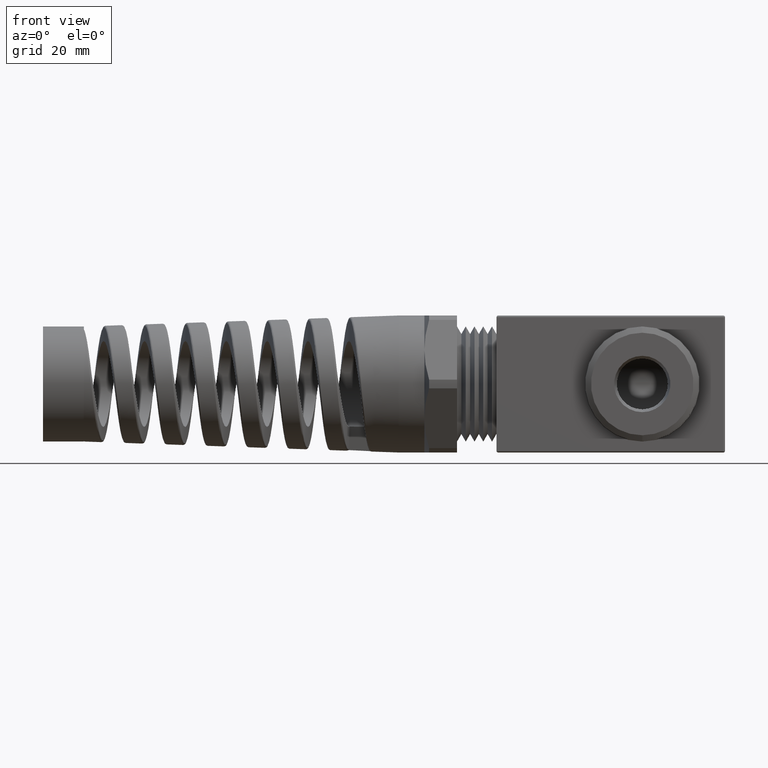
[diagram: clean part render]
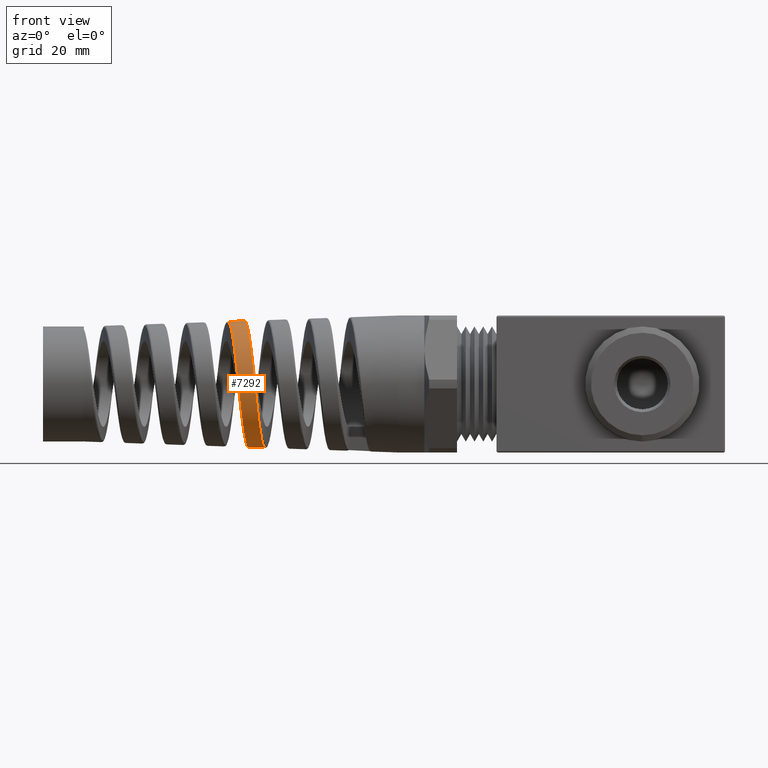
[diagram: same view with one face highlighted and labeled with its STEP entity id]
A machine part, front view. The second image highlights one B-rep face of the part: STEP entity #7292.
In plain terms, the highlighted conical surface has half-angle 2 deg.
Its self-contained STEP definition (entity closure, byte-faithful):
#1278 = CARTESIAN_POINT ( 'NONE',  ( -1.841561912663937100, 6.841017039087616400E-014, 0.4291579980415429800 ) ) ;
#1283 = CARTESIAN_POINT ( 'NONE',  ( -1.588092709410913600, 5.378720768999652000E-013, -0.4380093376615970500 ) ) ;
#1292 = DIRECTION ( 'NONE',  ( 0.9993908270190959800, 0.0000000000000000000, -0.03489949670249403700 ) ) ;
#1294 = VECTOR ( 'NONE', #1292, 39.37007874015748100 ) ;
#1295 = CARTESIAN_POINT ( 'NONE',  ( -0.6720000000000001500, 0.0000000000000000000, -0.4699999999999998600 ) ) ;
#1296 = LINE ( 'NONE', #1295, #1294 ) ;
#1523 = CARTESIAN_POINT ( 'NONE',  ( -1.701181390279759200, 1.537446131535684400E-014, -0.4340601939048510700 ) ) ;
#1677 = DIRECTION ( 'NONE',  ( 0.9993908270190959800, 4.273955692856292900E-018, 0.03489949670249403700 ) ) ;
#1678 = VECTOR ( 'NONE', #1677, 39.37007874015748100 ) ;
#1679 = CARTESIAN_POINT ( 'NONE',  ( -0.6720000000000001500, 5.755839955992558400E-017, 0.4699999999999998600 ) ) ;
#1680 = LINE ( 'NONE', #1679, #1678 ) ;
#5876 = CARTESIAN_POINT ( 'NONE',  ( -1.728496292560490500, 6.489728726191558100E-016, 0.4331063364986161800 ) ) ;
#7096 = VERTEX_POINT ( 'NONE', #1283 ) ;
#7099 = VERTEX_POINT ( 'NONE', #1278 ) ;
#7107 = EDGE_CURVE ( 'NONE', #7166, #7096, #1296, .T. ) ;
#7166 = VERTEX_POINT ( 'NONE', #1523 ) ;
#7180 = EDGE_CURVE ( 'NONE', #7099, #7203, #1680, .T. ) ;
#7203 = VERTEX_POINT ( 'NONE', #5876 ) ;
#7286 = EDGE_CURVE ( 'NONE', #7099, #7166, #8256, .T. ) ;
#7287 = ORIENTED_EDGE ( 'NONE', *, *, #7107, .T. ) ;
#7288 = ORIENTED_EDGE ( 'NONE', *, *, #7291, .T. ) ;
#7291 = EDGE_CURVE ( 'NONE', #7096, #7203, #8372, .T. ) ;
#7292 = ADVANCED_FACE ( 'NONE', ( #8373 ), #8402, .T. ) ;
#7294 = EDGE_LOOP ( 'NONE', ( #7305, #7306, #7287, #7288 ) ) ;
#7305 = ORIENTED_EDGE ( 'NONE', *, *, #7180, .F. ) ;
#7306 = ORIENTED_EDGE ( 'NONE', *, *, #7286, .T. ) ;
#8251 = CARTESIAN_POINT ( 'NONE',  ( -1.834173036148997400, -0.07075670660705833700, 0.4237799771779977000 ) ) ;
#8252 = CARTESIAN_POINT ( 'NONE',  ( -1.835639224060607000, -0.05679385894752526900, 0.4258286824240877200 ) ) ;
#8253 = CARTESIAN_POINT ( 'NONE',  ( -1.838592442112284800, -0.02853695656774338200, 0.4285471996270462900 ) ) ;
#8254 = CARTESIAN_POINT ( 'NONE',  ( -1.840080810731172100, -0.01422985886500099400, 0.4292097192607331500 ) ) ;
#8255 = CARTESIAN_POINT ( 'NONE',  ( -1.841561912663937100, 6.841017039087616400E-014, 0.4291579980415429800 ) ) ;
#8256 = B_SPLINE_CURVE_WITH_KNOTS ( 'NONE', 3,
 ( #8255, #8254, #8253, #8252, #8251, #8334, #8333, #8332, #8331, #8330, #8329, #8328, #8327, #8326, #8325, #8324, #8323, #8322, #8321, #8320, #8319, #8318, #8317, #8316, #8315, #8314, #8313, #8312, #8311, #8310, #8309, #8308, #8307, #8306, #8305, #8304, #8303, #8302, #8301, #8300, #8299, #8298, #8297, #8296, #8295, #8294, #8293, #8292, #8291 ),
 .UNSPECIFIED., .F., .F.,
 ( 4, 2, 2, 2, 2, 1, 2, 2, 2, 2, 2, 2, 2, 2, 2, 2, 2, 2, 2, 2, 2, 2, 2, 2, 4 ),
 ( 0.2349370397999832000, 0.2360280126698850500, 0.2371189855397869100, 0.2393009312795906000, 0.2403919041494924400, 0.2414828770193943000, 0.2425738498892961400, 0.2436648227591979900, 0.2458467684990016700, 0.2480287142388053500, 0.2502106599786090300, 0.2513016328485109300, 0.2523926057184127700, 0.2545745514582164500, 0.2567564971980201300, 0.2578474700679219700, 0.2589384429378238100, 0.2611203886776274900, 0.2622113615475293300, 0.2633023344174311700, 0.2654842801572349100, 0.2665752530271367500, 0.2676662258970385900, 0.2687571987669404300, 0.2698481716368422700 ),
 .UNSPECIFIED. ) ;
#8291 = CARTESIAN_POINT ( 'NONE',  ( -1.701181390279759200, 1.537446131535684400E-014, -0.4340601939048510700 ) ) ;
#8292 = CARTESIAN_POINT ( 'NONE',  ( -1.702644112074749300, -0.01420979355368818200, -0.4340091145342182500 ) ) ;
#8293 = CARTESIAN_POINT ( 'NONE',  ( -1.704110953029998900, -0.02844996807434156700, -0.4332542253267711000 ) ) ;
#8294 = CARTESIAN_POINT ( 'NONE',  ( -1.707019070579340700, -0.05653010050608105200, -0.4303891755557874800 ) ) ;
#8295 = CARTESIAN_POINT ( 'NONE',  ( -1.708467330347169400, -0.07043814989449204100, -0.4282796158826096000 ) ) ;
#8296 = CARTESIAN_POINT ( 'NONE',  ( -1.711364733536663100, -0.09799214312385597100, -0.4227229919480712300 ) ) ;
#8297 = CARTESIAN_POINT ( 'NONE',  ( -1.712813379440780900, -0.1116381423913349900, -0.4192759426667188000 ) ) ;
#8298 = CARTESIAN_POINT ( 'NONE',  ( -1.715725316373403400, -0.1386624117519073800, -0.4110230441560467900 ) ) ;
#8299 = CARTESIAN_POINT ( 'NONE',  ( -1.717196818389192400, -0.1521131111328630500, -0.4061845896642241000 ) ) ;
#8300 = CARTESIAN_POINT ( 'NONE',  ( -1.721583276457384000, -0.1914027668722319000, -0.3898208893996108500 ) ) ;
#8301 = CARTESIAN_POINT ( 'NONE',  ( -1.724468527878075100, -0.2161856841232257000, -0.3765094446776247600 ) ) ;
#8302 = CARTESIAN_POINT ( 'NONE',  ( -1.728823773638256300, -0.2512842977106087300, -0.3530234542408863300 ) ) ;
#8303 = CARTESIAN_POINT ( 'NONE',  ( -1.730280035489447600, -0.2626354659091220100, -0.3446042196776064000 ) ) ;
#8304 = CARTESIAN_POINT ( 'NONE',  ( -1.733216268685799700, -0.2846176229745928700, -0.3265478075005546800 ) ) ;
#8305 = CARTESIAN_POINT ( 'NONE',  ( -1.734684305625505500, -0.2951549462667155100, -0.3169802254648714200 ) ) ;
#8306 = CARTESIAN_POINT ( 'NONE',  ( -1.739055353414006300, -0.3250594253606847200, -0.2870434927512008900 ) ) ;
#8307 = CARTESIAN_POINT ( 'NONE',  ( -1.741945503069912200, -0.3428999138496040000, -0.2653182116610758300 ) ) ;
#8308 = CARTESIAN_POINT ( 'NONE',  ( -1.746327082708033100, -0.3664864337672291100, -0.2300646039331091000 ) ) ;
#8309 = CARTESIAN_POINT ( 'NONE',  ( -1.747803319054173500, -0.3738490343762106400, -0.2177964925222865800 ) ) ;
#8310 = CARTESIAN_POINT ( 'NONE',  ( -1.750731568438960200, -0.3872179999844266300, -0.1928009476675596500 ) ) ;
#8311 = CARTESIAN_POINT ( 'NONE',  ( -1.752186468215523900, -0.3932469813530633500, -0.1800547669940109900 ) ) ;
#8312 = CARTESIAN_POINT ( 'NONE',  ( -1.756545496468120600, -0.4094118379373482600, -0.1410902057726827800 ) ) ;
#8313 = CARTESIAN_POINT ( 'NONE',  ( -1.759443732269351500, -0.4176441201044491800, -0.1141527611773698900 ) ) ;
#8314 = CARTESIAN_POINT ( 'NONE',  ( -1.765339803648906700, -0.4288143838713694400, -0.05829087737140163000 ) ) ;
#8315 = CARTESIAN_POINT ( 'NONE',  ( -1.768251265675089100, -0.4315784043889401800, -0.03018229527921595700 ) ) ;
#8316 = CARTESIAN_POINT ( 'NONE',  ( -1.772617237797215600, -0.4316279967913190800, 0.01198915971067074700 ) ) ;
#8317 = CARTESIAN_POINT ( 'NONE',  ( -1.774074185992559700, -0.4309594733917491700, 0.02606123887140257900 ) ) ;
#8318 = CARTESIAN_POINT ( 'NONE',  ( -1.777004963103246100, -0.4282237295716515000, 0.05423446360485376100 ) ) ;
#8319 = CARTESIAN_POINT ( 'NONE',  ( -1.778485309218612400, -0.4261389120112483700, 0.06839652613781092800 ) ) ;
#8320 = CARTESIAN_POINT ( 'NONE',  ( -1.782883244161572300, -0.4178857085589426400, 0.1100580651535573600 ) ) ;
#8321 = CARTESIAN_POINT ( 'NONE',  ( -1.785781620847448400, -0.4097391555462271400, 0.1369691386260972800 ) ) ;
#8322 = CARTESIAN_POINT ( 'NONE',  ( -1.791626738169264500, -0.3882283739201419200, 0.1890753835268072200 ) ) ;
#8323 = CARTESIAN_POINT ( 'NONE',  ( -1.794596536370698400, -0.3746977995052160300, 0.2144343825307675800 ) ) ;
#8324 = CARTESIAN_POINT ( 'NONE',  ( -1.800443758841251000, -0.3434119407039841800, 0.2612908286769734500 ) ) ;
#8325 = CARTESIAN_POINT ( 'NONE',  ( -1.803347702722432100, -0.3255930954241457200, 0.2830480151973149800 ) ) ;
#8326 = CARTESIAN_POINT ( 'NONE',  ( -1.807759860732106800, -0.2955441974868410200, 0.3131223055031209200 ) ) ;
#8327 = CARTESIAN_POINT ( 'NONE',  ( -1.809243155391052800, -0.2849409437219953500, 0.3227307476018538800 ) ) ;
#8328 = CARTESIAN_POINT ( 'NONE',  ( -1.812178817544600500, -0.2630736205449628100, 0.3406619077310827900 ) ) ;
#8329 = CARTESIAN_POINT ( 'NONE',  ( -1.815099381809438300, -0.2404425827538976800, 0.3574208175820389200 ) ) ;
#8330 = CARTESIAN_POINT ( 'NONE',  ( -1.818019088529181100, -0.2163131579766342000, 0.3718742939658042900 ) ) ;
#8331 = CARTESIAN_POINT ( 'NONE',  ( -1.820952340603758900, -0.1914274320555456900, 0.3851614396907964100 ) ) ;
#8332 = CARTESIAN_POINT ( 'NONE',  ( -1.822431673270428900, -0.1785534789218999900, 0.3912432745792096500 ) ) ;
#8333 = CARTESIAN_POINT ( 'NONE',  ( -1.826869993670167600, -0.1391188729067899300, 0.4075193605569084100 ) ) ;
#8334 = CARTESIAN_POINT ( 'NONE',  ( -1.829783408204705300, -0.1121596378978960400, 0.4156217606776908000 ) ) ;
#8335 = CARTESIAN_POINT ( 'NONE',  ( -1.703502866350349300, -0.2303624107153612900, 0.3680683294387387400 ) ) ;
#8336 = CARTESIAN_POINT ( 'NONE',  ( -1.699100119797324100, -0.2659384595453337900, 0.3443270267778453200 ) ) ;
#8337 = CARTESIAN_POINT ( 'NONE',  ( -1.696195509476245300, -0.2878838382687924400, 0.3263359218202439000 ) ) ;
#8338 = CARTESIAN_POINT ( 'NONE',  ( -1.691796985386851500, -0.3181398987928470400, 0.2961132521828376800 ) ) ;
#8339 = CARTESIAN_POINT ( 'NONE',  ( -1.690315829708939100, -0.3278267162539137400, 0.2854344364263184900 ) ) ;
#8340 = CARTESIAN_POINT ( 'NONE',  ( -1.687367242087446200, -0.3460050863788525800, 0.2632738688811646100 ) ) ;
#8341 = CARTESIAN_POINT ( 'NONE',  ( -1.685902988699076800, -0.3544838044892056900, 0.2518225895377605400 ) ) ;
#8342 = CARTESIAN_POINT ( 'NONE',  ( -1.681519356481632900, -0.3781372831006479300, 0.2163878157318064300 ) ) ;
#8343 = CARTESIAN_POINT ( 'NONE',  ( -1.678610912184730600, -0.3915464063140199300, 0.1913334880427575700 ) ) ;
#8344 = CARTESIAN_POINT ( 'NONE',  ( -1.674187151363305300, -0.4080044045249186500, 0.1515449922940504700 ) ) ;
#8345 = CARTESIAN_POINT ( 'NONE',  ( -1.672711971565763700, -0.4128334031426187900, 0.1379989758745423200 ) ) ;
#8346 = CARTESIAN_POINT ( 'NONE',  ( -1.669787576939518700, -0.4210727902529471900, 0.1107326021136305600 ) ) ;
#8347 = CARTESIAN_POINT ( 'NONE',  ( -1.666876532697572300, -0.4279415194525773000, 0.08317866981792813900 ) ) ;
#8348 = CARTESIAN_POINT ( 'NONE',  ( -1.663963255881072200, -0.4320999482530167900, 0.05505914403339316100 ) ) ;
#8349 = CARTESIAN_POINT ( 'NONE',  ( -1.661034253585972300, -0.4348799101349208300, 0.02665349294479566300 ) ) ;
#8350 = CARTESIAN_POINT ( 'NONE',  ( -1.659553792975186700, -0.4355772931154848200, 0.01222852141637867200 ) ) ;
#8351 = CARTESIAN_POINT ( 'NONE',  ( -1.655146842097790800, -0.4355259634450351900, -0.03070332094575632300 ) ) ;
#8352 = CARTESIAN_POINT ( 'NONE',  ( -1.652245188139831200, -0.4326979440143100000, -0.05895456623279007200 ) ) ;
#8353 = CARTESIAN_POINT ( 'NONE',  ( -1.646414419844867400, -0.4215679543563745100, -0.1147218859813854700 ) ) ;
#8354 = CARTESIAN_POINT ( 'NONE',  ( -1.643455324272657300, -0.4131242745050203200, -0.1424805454144093800 ) ) ;
#8355 = CARTESIAN_POINT ( 'NONE',  ( -1.637626030724759400, -0.3912873582252898200, -0.1950491091800147500 ) ) ;
#8356 = CARTESIAN_POINT ( 'NONE',  ( -1.634734668394298900, -0.3779022835099483100, -0.2200775413605868000 ) ) ;
#8357 = CARTESIAN_POINT ( 'NONE',  ( -1.630346231522676200, -0.3540891330400082700, -0.2557082727628742800 ) ) ;
#8358 = CARTESIAN_POINT ( 'NONE',  ( -1.628868030536071700, -0.3454780789758350500, -0.2673126776199683000 ) ) ;
#8359 = CARTESIAN_POINT ( 'NONE',  ( -1.625939893337805100, -0.3273312738065673500, -0.2894040471077576900 ) ) ;
#8360 = CARTESIAN_POINT ( 'NONE',  ( -1.624484504618150200, -0.3177711134095881900, -0.2999390996694166800 ) ) ;
#8361 = CARTESIAN_POINT ( 'NONE',  ( -1.620125769997356400, -0.2876631510985567200, -0.3300440720304460600 ) ) ;
#8362 = CARTESIAN_POINT ( 'NONE',  ( -1.617229733442241400, -0.2656924294786426900, -0.3481344438123302700 ) ) ;
#8363 = CARTESIAN_POINT ( 'NONE',  ( -1.611347329421691600, -0.2178566098036646700, -0.3801422495086334000 ) ) ;
#8364 = CARTESIAN_POINT ( 'NONE',  ( -1.608456165064677600, -0.1927664804094773300, -0.3935436545087500600 ) ) ;
#8365 = CARTESIAN_POINT ( 'NONE',  ( -1.604106518908434000, -0.1534527413216463800, -0.4098979285966440300 ) ) ;
#8366 = CARTESIAN_POINT ( 'NONE',  ( -1.602654613768318000, -0.1400663531656627900, -0.4147201708230941500 ) ) ;
#8367 = CARTESIAN_POINT ( 'NONE',  ( -1.599732682423807600, -0.1127189375021175500, -0.4230781685035462900 ) ) ;
#8368 = CARTESIAN_POINT ( 'NONE',  ( -1.598257785439644700, -0.09870960820019275600, -0.4266166189982991700 ) ) ;
#8369 = CARTESIAN_POINT ( 'NONE',  ( -1.593879676840698000, -0.05670243892082552800, -0.4350585648589707100 ) ) ;
#8370 = CARTESIAN_POINT ( 'NONE',  ( -1.590996278311225900, -0.02846395047653309900, -0.4379079428013606900 ) ) ;
#8371 = CARTESIAN_POINT ( 'NONE',  ( -1.588092709410913600, 5.378720768999652000E-013, -0.4380093376615970500 ) ) ;
#8372 = B_SPLINE_CURVE_WITH_KNOTS ( 'NONE', 3,
 ( #8371, #8370, #8369, #8368, #8367, #8366, #8365, #8364, #8363, #8362, #8361, #8360, #8359, #8358, #8357, #8356, #8355, #8354, #8353, #8352, #8351, #8350, #8349, #8348, #8347, #8346, #8345, #8344, #8343, #8342, #8341, #8340, #8339, #8338, #8337, #8336, #8335, #8413, #8412, #8411, #8410, #8409, #8408, #8407, #8406, #8405, #8404 ),
 .UNSPECIFIED., .F., .F.,
 ( 4, 2, 2, 2, 2, 2, 2, 2, 2, 2, 2, 2, 1, 2, 2, 2, 2, 2, 2, 2, 2, 2, 2, 4 ),
 ( 0.1465185604270058700, 0.1487203717819474100, 0.1498212774594181700, 0.1509221831368889300, 0.1531239944918304800, 0.1553258058467720000, 0.1564267115242427800, 0.1575276172017135400, 0.1597294285566550600, 0.1619312399115966100, 0.1641330512665381300, 0.1652339569440088900, 0.1663348626214796500, 0.1674357682989504000, 0.1685366739764211900, 0.1707384853313627100, 0.1718393910088335000, 0.1729402966863042600, 0.1751421080412457800, 0.1762430137187165300, 0.1773439193961872900, 0.1795457307511288400, 0.1806466364285996000, 0.1817475421060703600 ),
 .UNSPECIFIED. ) ;
#8373 = FACE_OUTER_BOUND ( 'NONE', #7294, .T. ) ;
#8398 = DIRECTION ( 'NONE',  ( 0.0000000000000000000, 0.0000000000000000000, -1.000000000000000000 ) ) ;
#8399 = DIRECTION ( 'NONE',  ( 1.000000000000000000, 0.0000000000000000000, 0.0000000000000000000 ) ) ;
#8400 = CARTESIAN_POINT ( 'NONE',  ( -0.6720000000000001500, 0.0000000000000000000, 0.0000000000000000000 ) ) ;
#8401 = AXIS2_PLACEMENT_3D ( 'NONE', #8400, #8399, #8398 ) ;
#8402 = CONICAL_SURFACE ( 'NONE', #8401, 0.4699999999999998600, 0.03490658503987965200 ) ;
#8404 = CARTESIAN_POINT ( 'NONE',  ( -1.728496292560490500, 6.489728726191558100E-016, 0.4331063364986161800 ) ) ;
#8405 = CARTESIAN_POINT ( 'NONE',  ( -1.727032796396459100, -0.01418905300704679400, 0.4331574429108124800 ) ) ;
#8406 = CARTESIAN_POINT ( 'NONE',  ( -1.725570734797873500, -0.02837149844345053200, 0.4325128959702172500 ) ) ;
#8407 = CARTESIAN_POINT ( 'NONE',  ( -1.722634789190395500, -0.05672151454102395500, 0.4298184002838754100 ) ) ;
#8408 = CARTESIAN_POINT ( 'NONE',  ( -1.721155154733495300, -0.07094397495666351900, 0.4277573018433950000 ) ) ;
#8409 = CARTESIAN_POINT ( 'NONE',  ( -1.716714569260078500, -0.1132091835103063200, 0.4194590072834570900 ) ) ;
#8410 = CARTESIAN_POINT ( 'NONE',  ( -1.713797684887800300, -0.1404136998488989300, 0.4112378394929524500 ) ) ;
#8411 = CARTESIAN_POINT ( 'NONE',  ( -1.709404778173667600, -0.1798023246450979300, 0.3950086206959182400 ) ) ;
#8412 = CARTESIAN_POINT ( 'NONE',  ( -1.707937996720111200, -0.1926938316068336200, 0.3889445531282524900 ) ) ;
#8413 = CARTESIAN_POINT ( 'NONE',  ( -1.704986217113567700, -0.2179867062526144600, 0.3754730622850346900 ) ) ;